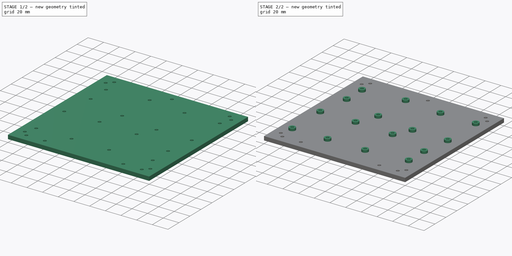
[diagram: build sequence overview — one tinted view per stage of 2, left to right]
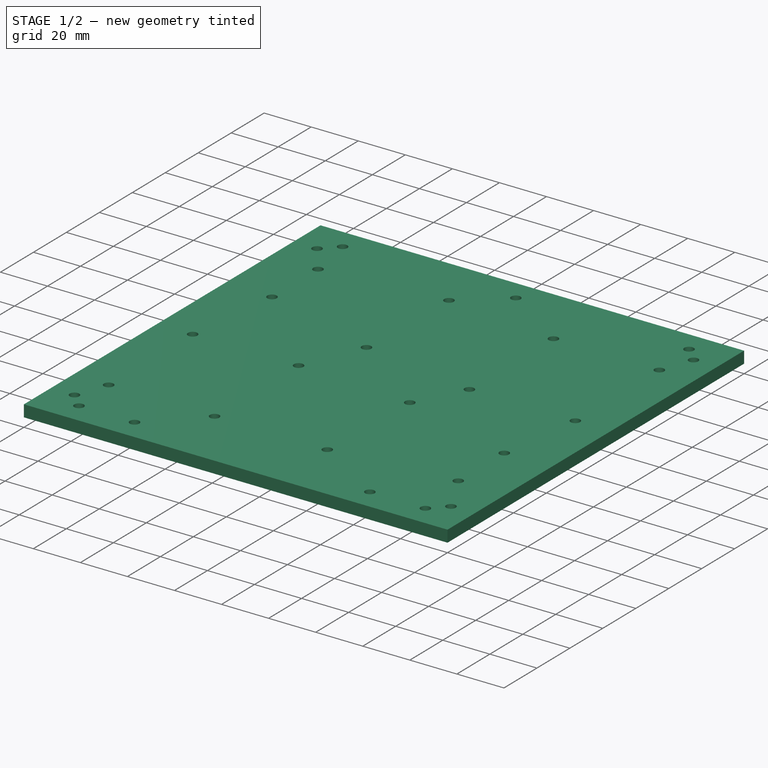
[diagram: stage 1 of 2 — iso view after this stage's code; geometry added in this stage tinted green]
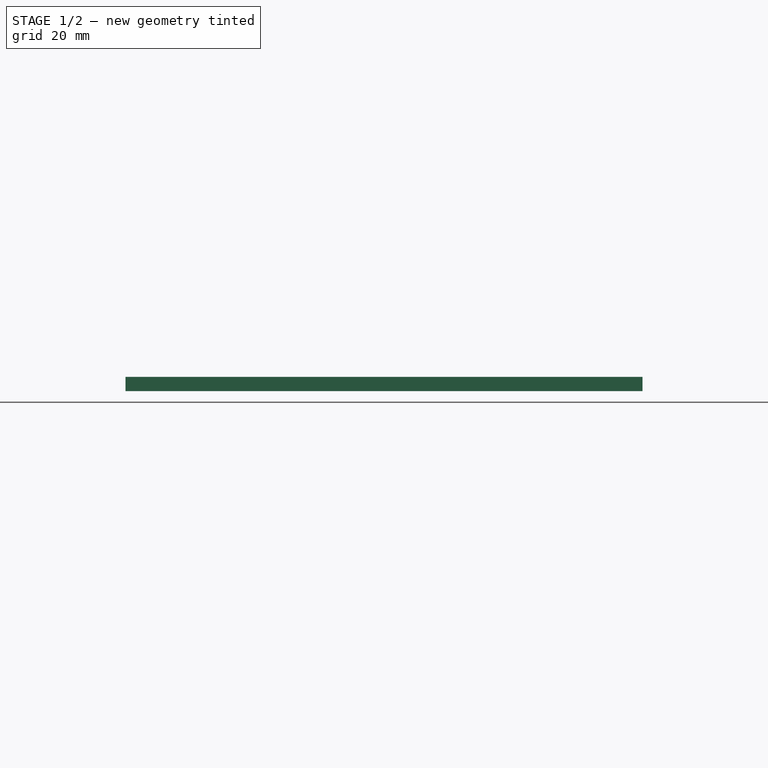
[diagram: stage 1 of 2 — front view after this stage's code; geometry added in this stage tinted green]
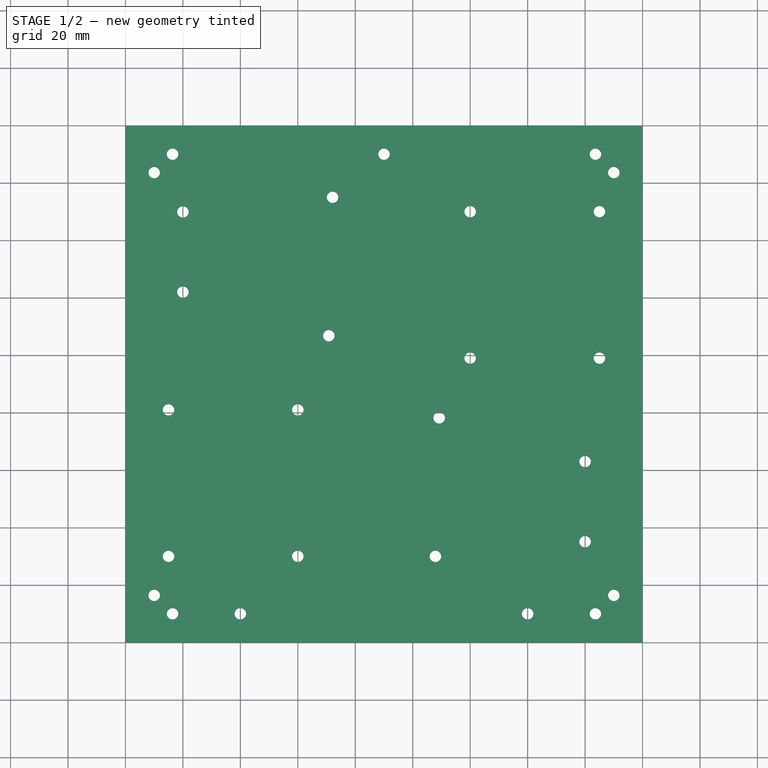
[diagram: stage 1 of 2 — top view after this stage's code; geometry added in this stage tinted green]
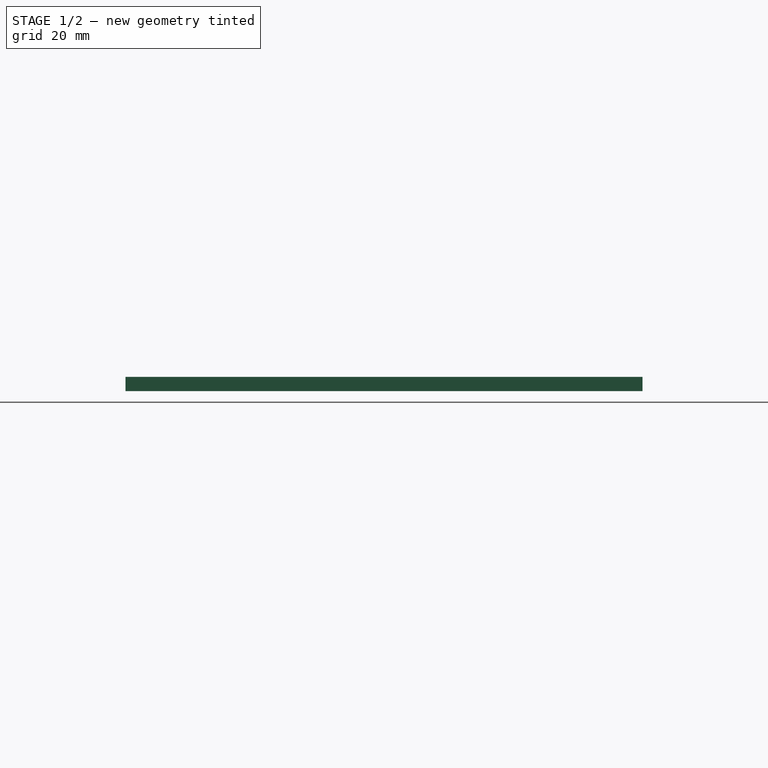
[diagram: stage 1 of 2 — right view after this stage's code; geometry added in this stage tinted green]
FCSTD DOCUMENT  (FreeCAD 0.20R29603 (Git))
Label: ThesisBasePlate V2
License: All rights reserved
LicenseURL: http://en.wikipedia.org/wiki/All_rights_reserved
objects: Sketcher::SketchObject×2, PartDesign::Pad×2, PartDesign::Body×1
note: 7 computed .brp shape members not serialized (recipe doc carries the construction recipe); baked Part::Feature solids carry a one-line shape summary decoded from their .brp

FEATURE [Sketcher::SketchObject] Sketch
  FullyConstrained = true
  MapMode = 5
  Support = -> [XY_Plane]
  sketch-geometry (31):
    g0: LineSegment StartX=0 StartY=0 StartZ=0 EndX=180 EndY=0 EndZ=0
    g1: LineSegment StartX=180 StartY=0 StartZ=0 EndX=180 EndY=180 EndZ=0
    g2: LineSegment StartX=180 StartY=180 StartZ=0 EndX=0 EndY=180 EndZ=0
    g3: LineSegment StartX=0 StartY=180 StartZ=0 EndX=0 EndY=0 EndZ=0
    g4: Circle CenterX=15 CenterY=30 CenterZ=0 NormalX=0 NormalY=0 NormalZ=1 AngleXU=0 Radius=2
    g5: Circle CenterX=15 CenterY=81 CenterZ=0 NormalX=0 NormalY=0 NormalZ=1 AngleXU=0 Radius=2
    g6: Circle CenterX=60 CenterY=30 CenterZ=0 NormalX=0 NormalY=0 NormalZ=1 AngleXU=0 Radius=2
    g7: Circle CenterX=60 CenterY=81 CenterZ=0 NormalX=0 NormalY=0 NormalZ=1 AngleXU=0 Radius=2
    g8: Circle CenterX=120 CenterY=150 CenterZ=0 NormalX=0 NormalY=0 NormalZ=1 AngleXU=0 Radius=2
    g9: Circle CenterX=165 CenterY=150 CenterZ=0 NormalX=0 NormalY=0 NormalZ=1 AngleXU=0 Radius=2
    g10: Circle CenterX=120 CenterY=99 CenterZ=0 NormalX=0 NormalY=0 NormalZ=1 AngleXU=0 Radius=2
    g11: Circle CenterX=165 CenterY=99 CenterZ=0 NormalX=0 NormalY=0 NormalZ=1 AngleXU=0 Radius=2
    g12: Circle CenterX=10 CenterY=16.4 CenterZ=0 NormalX=0 NormalY=0 NormalZ=1 AngleXU=0 Radius=2
    g13: Circle CenterX=16.4 CenterY=10 CenterZ=0 NormalX=0 NormalY=0 NormalZ=1 AngleXU=0 Radius=2
    g14: Circle CenterX=170 CenterY=16.4 CenterZ=0 NormalX=0 NormalY=0 NormalZ=1 AngleXU=0 Radius=2
    g15: Circle CenterX=163.6 CenterY=10 CenterZ=0 NormalX=0 NormalY=0 NormalZ=1 AngleXU=0 Radius=2
    g16: Circle CenterX=10 CenterY=163.6 CenterZ=0 NormalX=0 NormalY=0 NormalZ=1 AngleXU=0 Radius=2
    g17: Circle CenterX=16.4 CenterY=170 CenterZ=0 NormalX=0 NormalY=0 NormalZ=1 AngleXU=0 Radius=2
    g18: Circle CenterX=163.6 CenterY=170 CenterZ=0 NormalX=0 NormalY=0 NormalZ=1 AngleXU=0 Radius=2
    g19: Circle CenterX=170 CenterY=163.6 CenterZ=0 NormalX=0 NormalY=0 NormalZ=1 AngleXU=0 Radius=2
    g20: Circle CenterX=72.1 CenterY=155 CenterZ=0 NormalX=0 NormalY=0 NormalZ=1 AngleXU=0 Radius=2
    g21: Circle CenterX=20 CenterY=149.9 CenterZ=0 NormalX=0 NormalY=0 NormalZ=1 AngleXU=0 Radius=2
    g22: Circle CenterX=20 CenterY=122 CenterZ=0 NormalX=0 NormalY=0 NormalZ=1 AngleXU=0 Radius=2
    g23: Circle CenterX=70.8 CenterY=106.8 CenterZ=0 NormalX=0 NormalY=0 NormalZ=1 AngleXU=0 Radius=2
    g24: Circle CenterX=107.9 CenterY=30 CenterZ=0 NormalX=0 NormalY=0 NormalZ=1 AngleXU=0 Radius=2
    g25: Circle CenterX=109.2 CenterY=78.2 CenterZ=0 NormalX=0 NormalY=0 NormalZ=1 AngleXU=0 Radius=2
    g26: Circle CenterX=160 CenterY=63 CenterZ=0 NormalX=0 NormalY=0 NormalZ=1 AngleXU=0 Radius=2
    g27: Circle CenterX=160 CenterY=35.1 CenterZ=0 NormalX=0 NormalY=0 NormalZ=1 AngleXU=0 Radius=2
    g28: Circle CenterX=90 CenterY=170 CenterZ=0 NormalX=0 NormalY=0 NormalZ=1 AngleXU=0 Radius=2
    g29: Circle CenterX=40 CenterY=10 CenterZ=0 NormalX=0 NormalY=0 NormalZ=1 AngleXU=0 Radius=2
    g30: Circle CenterX=140 CenterY=10 CenterZ=0 NormalX=0 NormalY=0 NormalZ=1 AngleXU=0 Radius=2
  constraints (92):
    c: Coincident(g0,g1)
    c: Coincident(g1,g2)
    c: Coincident(g2,g3)
    c: Coincident(g3,g0)
    c: Horizontal(g0)
    c: Horizontal(g2)
    c: Vertical(g1)
    c: Vertical(g3)
    c: Coincident(g0,g-1)
    c: DistanceY(g3,g3) = 180
    c: DistanceX(g0,g0) = 180
    c: Diameter(g4) = 4
    c: DistanceY(g0,g4) = 30
    c: DistanceX(g0,g4) = 15
    c: DistanceX(g5,g4) = 0
    c: DistanceY(g4,g5) = 51
    c: Diameter(g5) = 4
    c: Diameter(g7) = 4
    c: Diameter(g6) = 4
    c: DistanceX(g7,g6) = 0
    c: DistanceX(g4,g6) = 45
    c: DistanceY(g6,g4) = 0
    c: DistanceY(g5,g7) = 0
    c: Diameter(g8) = 4
    c: Diameter(g9) = 4
    c: Diameter(g10) = 4
    c: Diameter(g11) = 4
    c: DistanceY(g10,g11) = 0
    c: DistanceY(g9,g8) = 0
    c: DistanceX(g11,g0) = 15
    c: DistanceX(g9,g11) = 0
    c: DistanceX(g10,g11) = 45
    c: DistanceX(g8,g10) = 0
    c: Diameter(g13) = 4
    c: Diameter(g12) = 4
    c: DistanceX(g0,g12) = 10
    c: DistanceX(g12,g13) = 6.4
    c: DistanceY(g0,g13) = 10
    c: DistanceY(g13,g12) = 6.4
    c: Diameter(g15) = 4
    c: Diameter(g14) = 4
    c: DistanceX(g14,g0) = 10
    c: DistanceX(g15,g14) = 6.4
    c: DistanceY(g0,g15) = 10
    c: DistanceY(g15,g14) = 6.4
    c: DistanceY(g17,g2) = 10
    c: Diameter(g17) = 4
    c: Diameter(g16) = 4
    c: DistanceY(g16,g17) = 6.4
    c: DistanceX(g2,g16) = 10
    c: DistanceX(g16,g17) = 6.4
    c: Diameter(g18) = 4
    c: Diameter(g19) = 4
    c: DistanceX(g19,g1) = 10
    c: DistanceX(g18,g19) = 6.4
    c: DistanceY(g18,g1) = 10
    c: DistanceY(g19,g18) = 6.4
    c: Diameter(g20) = 4
    c: Diameter(g21) = 4
    c: Diameter(g22) = 4
    c: Diameter(g23) = 4
    c: DistanceY(g21,g20) = 5.1
    c: DistanceY(g22,g21) = 27.9
    c: DistanceY(g20,g2) = 25
    c: DistanceY(g22,g23) = -15.2
    c: DistanceX(g21,g22) = 0
    c: DistanceX(g2,g21) = 20
    c: DistanceX(g22,g23) = 50.8
    c: DistanceX(g20,g23) = -1.3
    c: Diameter(g25) = 4
    c: Diameter(g26) = 4
    c: Diameter(g27) = 4
    c: Diameter(g24) = 4
    c: DistanceX(g24,g25) = 1.3
    c: DistanceX(g26,g27) = 0
    c: DistanceX(g26,g1) = 20
    c: DistanceX(g25,g26) = 50.8
    c: DistanceY(g26,g25) = 15.2
    c: DistanceY(g27,g26) = 27.9
    c: DistanceY(g24,g27) = 5.1
    c: DistanceX(g28,g1) = 90
    c: Diameter(g28) = 4
    c: Diameter(g29) = 4
    c: Diameter(g30) = 4
    c: DistanceY(g29,g30) = 0
    c: DistanceX(g0,g29) = 40
    c: DistanceX(g30,g0) = 40
    c: DistanceY(g0,g29) = 10
    c: DistanceY(g28,g1) = 10
    c: DistanceY(g0,g24) = 30
    c: DistanceY(g10,g8) = 51
    c: DistanceY(g8,g1) = 30
FEATURE [PartDesign::Pad] Pad
  Direction = (0,0,1)
  Length = 5
  Length2 = 10
  Profile = -> Sketch
  ReferenceAxis = -> Sketch [N_Axis]
  Type = 0
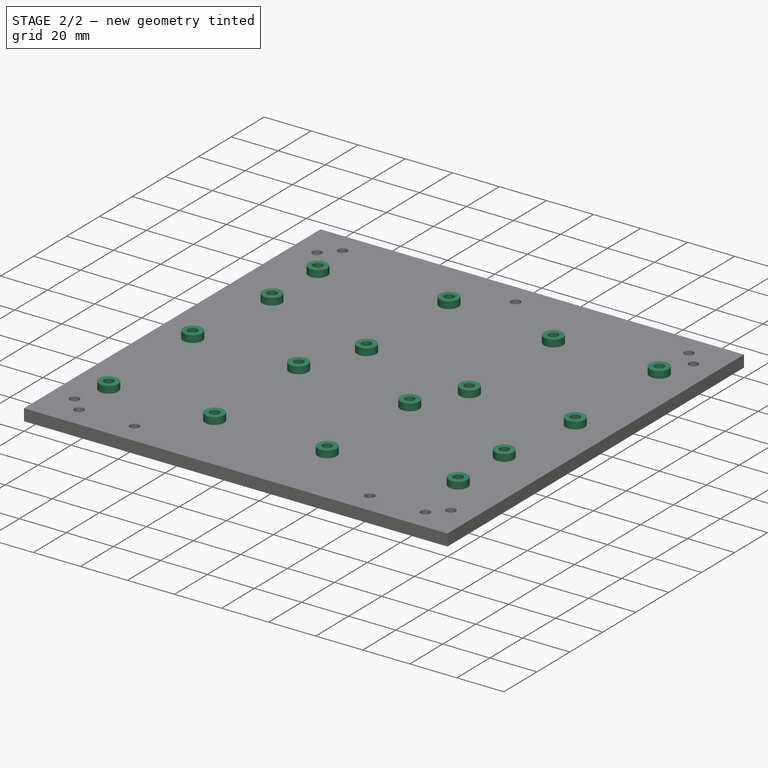
[diagram: stage 2 of 2 — iso view after this stage's code; geometry added in this stage tinted green]
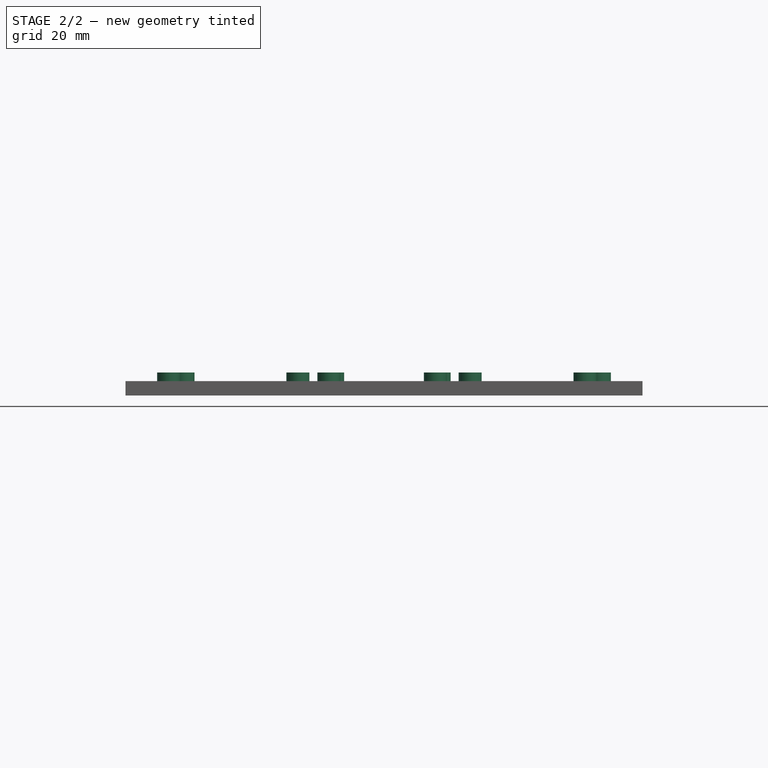
[diagram: stage 2 of 2 — front view after this stage's code; geometry added in this stage tinted green]
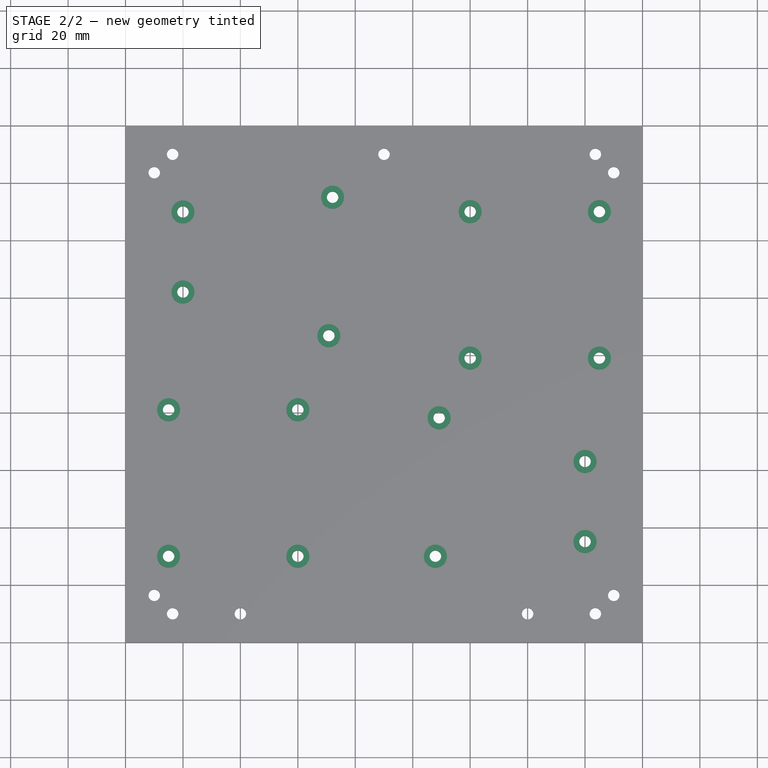
[diagram: stage 2 of 2 — top view after this stage's code; geometry added in this stage tinted green]
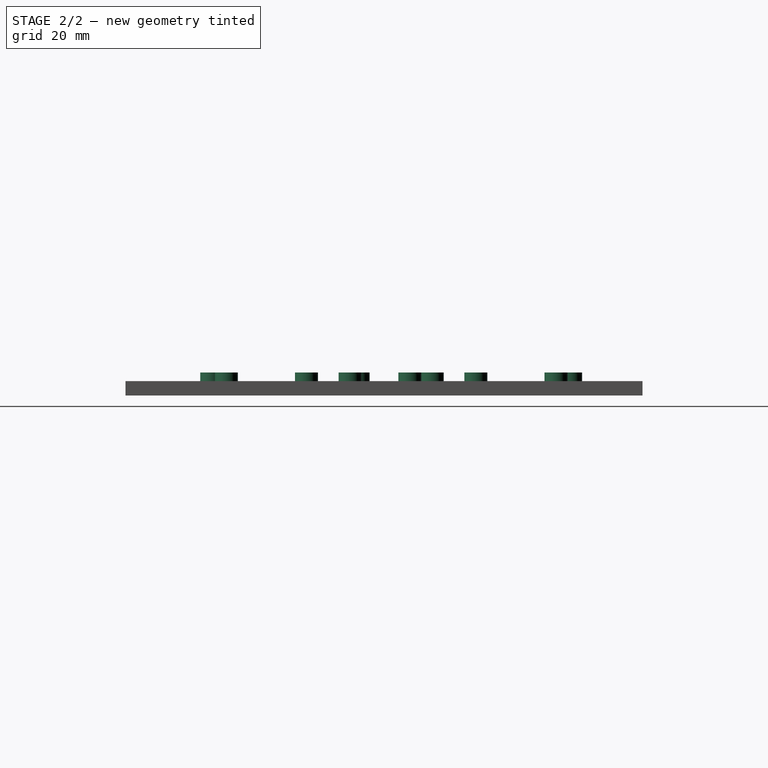
[diagram: stage 2 of 2 — right view after this stage's code; geometry added in this stage tinted green]
FEATURE [Sketcher::SketchObject] Sketch001
  ExternalGeometry = -> [Pad]
  FullyConstrained = true
  MapMode = 5
  Placement = pos=(0,0,5) rot=(0,0,1;0rad)
  Support = -> [Pad]
  sketch-geometry (32):
    g0: Circle CenterX=20 CenterY=149.9 CenterZ=0 NormalX=0 NormalY=0 NormalZ=1 AngleXU=0 Radius=2
    g1: Circle CenterX=20 CenterY=149.9 CenterZ=0 NormalX=0 NormalY=0 NormalZ=1 AngleXU=0 Radius=4
    g2: Circle CenterX=72.1 CenterY=155 CenterZ=0 NormalX=0 NormalY=0 NormalZ=1 AngleXU=0 Radius=2
    g3: Circle CenterX=72.1 CenterY=155 CenterZ=0 NormalX=0 NormalY=0 NormalZ=1 AngleXU=0 Radius=4
    g4: Circle CenterX=20 CenterY=122 CenterZ=0 NormalX=0 NormalY=0 NormalZ=1 AngleXU=0 Radius=2
    g5: Circle CenterX=20 CenterY=122 CenterZ=0 NormalX=0 NormalY=0 NormalZ=1 AngleXU=0 Radius=4
    g6: Circle CenterX=70.8 CenterY=106.8 CenterZ=0 NormalX=0 NormalY=0 NormalZ=1 AngleXU=0 Radius=2
    g7: Circle CenterX=70.8 CenterY=106.8 CenterZ=0 NormalX=0 NormalY=0 NormalZ=1 AngleXU=0 Radius=4
    g8: Circle CenterX=15 CenterY=81 CenterZ=0 NormalX=0 NormalY=0 NormalZ=1 AngleXU=0 Radius=2
    g9: Circle CenterX=15 CenterY=81 CenterZ=0 NormalX=0 NormalY=0 NormalZ=1 AngleXU=0 Radius=4
    g10: Circle CenterX=60 CenterY=81 CenterZ=0 NormalX=0 NormalY=0 NormalZ=1 AngleXU=0 Radius=4
    g11: Circle CenterX=60 CenterY=81 CenterZ=0 NormalX=0 NormalY=0 NormalZ=1 AngleXU=0 Radius=2
    g12: Circle CenterX=15 CenterY=30 CenterZ=0 NormalX=0 NormalY=0 NormalZ=1 AngleXU=0 Radius=2
    g13: Circle CenterX=60 CenterY=30 CenterZ=0 NormalX=0 NormalY=0 NormalZ=1 AngleXU=0 Radius=2
    g14: Circle CenterX=60 CenterY=30 CenterZ=0 NormalX=0 NormalY=0 NormalZ=1 AngleXU=0 Radius=4
    g15: Circle CenterX=15 CenterY=30 CenterZ=0 NormalX=0 NormalY=0 NormalZ=1 AngleXU=0 Radius=4
    g16: Circle CenterX=107.9 CenterY=30 CenterZ=0 NormalX=0 NormalY=0 NormalZ=1 AngleXU=0 Radius=2
    g17: Circle CenterX=107.9 CenterY=30 CenterZ=0 NormalX=0 NormalY=0 NormalZ=1 AngleXU=0 Radius=4
    g18: Circle CenterX=160 CenterY=35.1 CenterZ=0 NormalX=0 NormalY=0 NormalZ=1 AngleXU=0 Radius=2
    g19: Circle CenterX=160 CenterY=35.1 CenterZ=0 NormalX=0 NormalY=0 NormalZ=1 AngleXU=0 Radius=4
    g20: Circle CenterX=109.2 CenterY=78.2 CenterZ=0 NormalX=0 NormalY=0 NormalZ=1 AngleXU=0 Radius=2
    g21: Circle CenterX=109.2 CenterY=78.2 CenterZ=0 NormalX=0 NormalY=0 NormalZ=1 AngleXU=0 Radius=4
    g22: Circle CenterX=160 CenterY=63 CenterZ=0 NormalX=0 NormalY=0 NormalZ=1 AngleXU=0 Radius=2
    g23: Circle CenterX=160 CenterY=63 CenterZ=0 NormalX=0 NormalY=0 NormalZ=1 AngleXU=0 Radius=4
    g24: Circle CenterX=120 CenterY=99 CenterZ=0 NormalX=0 NormalY=0 NormalZ=1 AngleXU=0 Radius=2
    g25: Circle CenterX=120 CenterY=99 CenterZ=0 NormalX=0 NormalY=0 NormalZ=1 AngleXU=0 Radius=4
    g26: Circle CenterX=165 CenterY=99 CenterZ=0 NormalX=0 NormalY=0 NormalZ=1 AngleXU=0 Radius=2
    g27: Circle CenterX=165 CenterY=99 CenterZ=0 NormalX=0 NormalY=0 NormalZ=1 AngleXU=0 Radius=4
    g28: Circle CenterX=165 CenterY=150 CenterZ=0 NormalX=0 NormalY=0 NormalZ=1 AngleXU=0 Radius=2
    g29: Circle CenterX=120 CenterY=150 CenterZ=0 NormalX=0 NormalY=0 NormalZ=1 AngleXU=0 Radius=2
    g30: Circle CenterX=120 CenterY=150 CenterZ=0 NormalX=0 NormalY=0 NormalZ=1 AngleXU=0 Radius=4
    g31: Circle CenterX=165 CenterY=150 CenterZ=0 NormalX=0 NormalY=0 NormalZ=1 AngleXU=0 Radius=4
  constraints (64):
    c: Coincident(g0,g-13)
    c: Coincident(g1,g0)
    c: Diameter(g0) = 4
    c: Diameter(g1) = 8
    c: Coincident(g2,g-14)
    c: Coincident(g3,g2)
    c: Diameter(g3) = 8
    c: Diameter(g2) = 4
    c: Coincident(g4,g-12)
    c: Coincident(g5,g4)
    c: Diameter(g5) = 8
    c: Diameter(g4) = 4
    c: Coincident(g6,g-11)
    c: Coincident(g7,g6)
    c: Diameter(g7) = 8
    c: Diameter(g6) = 4
    c: Coincident(g8,g-6)
    c: Coincident(g9,g8)
    c: Coincident(g10,g-5)
    c: Coincident(g11,g10)
    c: Diameter(g9) = 8
    c: Diameter(g10) = 8
    c: Diameter(g11) = 4
    c: Diameter(g8) = 4
    c: Coincident(g12,g-3)
    c: Coincident(g13,g-4)
    c: Coincident(g14,g13)
    c: Coincident(g15,g12)
    c: Diameter(g15) = 8
    c: Diameter(g14) = 8
    c: Diameter(g13) = 4
    c: Diameter(g12) = 4
    c: Coincident(g16,g-7)
    c: Coincident(g17,g16)
    c: Coincident(g18,g-8)
    c: Coincident(g19,g18)
    c: Diameter(g17) = 8
    c: Diameter(g19) = 8
    c: Diameter(g18) = 4
    c: Diameter(g16) = 4
    c: Coincident(g20,g-10)
    c: Coincident(g21,g20)
    c: Coincident(g22,g-9)
    c: Coincident(g23,g22)
    c: Diameter(g23) = 8
    c: Diameter(g21) = 8
    c: Diameter(g20) = 4
    c: Diameter(g22) = 4
    c: Coincident(g24,g-19)
    c: PointOnObject(g-18,g24)
    c: Coincident(g25,g24)
    c: Diameter(g25) = 8
    c: Coincident(g26,g-17)
    c: Coincident(g27,g26)
    c: Diameter(g27) = 8
    c: Diameter(g26) = 4
    c: Coincident(g28,g-16)
    c: Coincident(g29,g-15)
    c: Coincident(g30,g29)
    c: Coincident(g31,g28)
    c: Diameter(g31) = 8
    c: Diameter(g30) = 8
    c: Diameter(g29) = 4
    c: Diameter(g28) = 4
FEATURE [PartDesign::Pad] Pad001
  BaseFeature = -> Pad
  Direction = (0,0,1)
  Length = 3
  Length2 = 10
  Profile = -> Sketch001
  ReferenceAxis = -> Sketch001 [N_Axis]
  Type = 0
FEATURE [PartDesign::Body] Body
  Group = -> [Sketch,Pad,Sketch001,Pad001]
  Origin = -> Origin
  Tip = -> Pad001
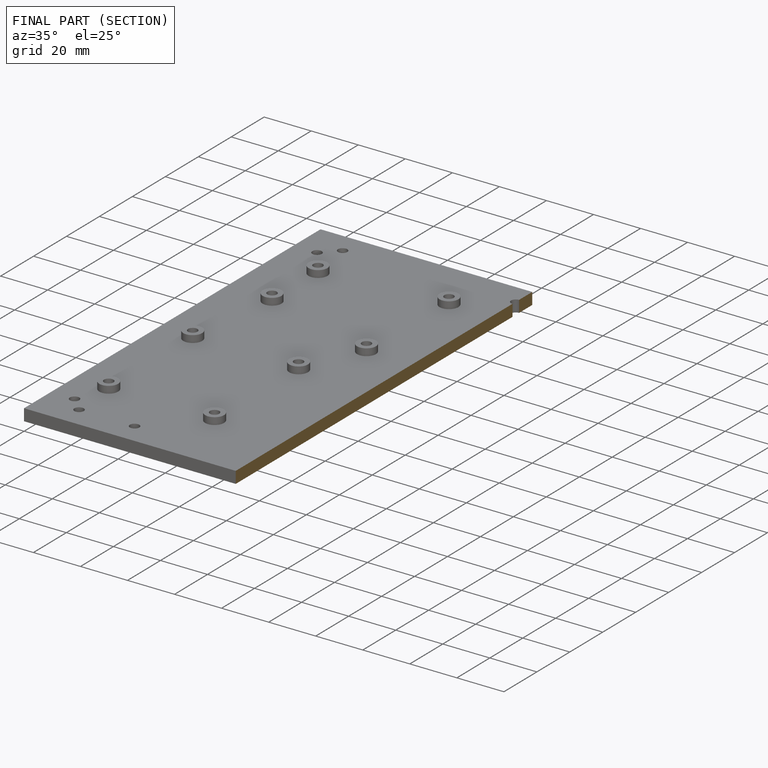
[diagram: finished part — half-section view (interior)]
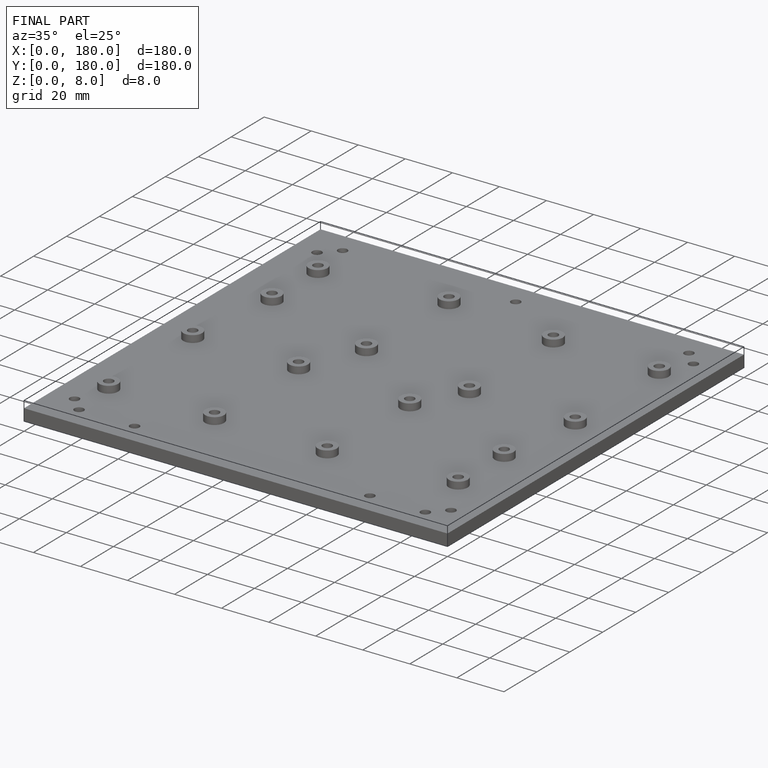
[diagram: finished part — iso view with bounding-box wireframe]
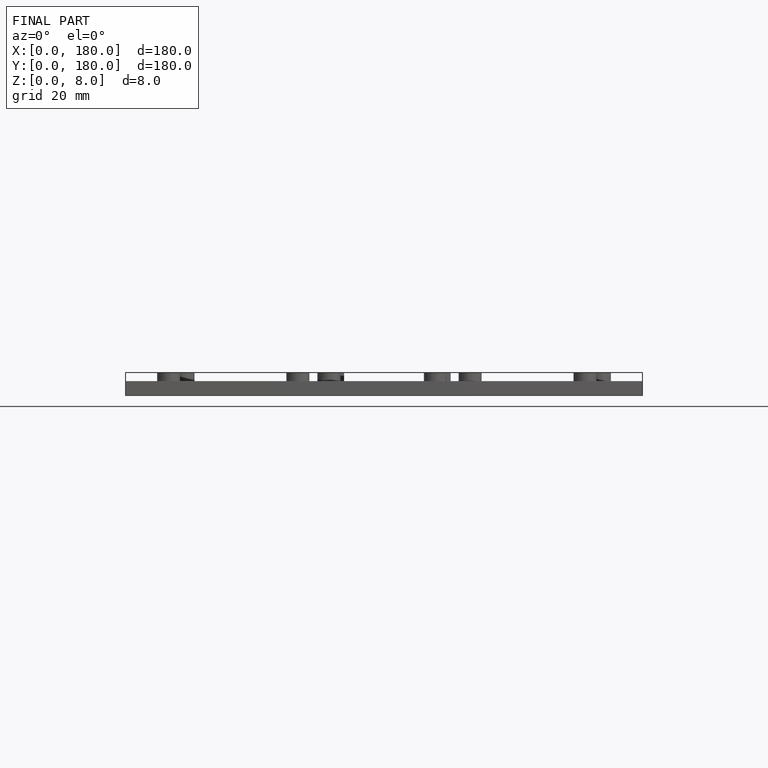
[diagram: finished part — front view with bounding-box wireframe]
